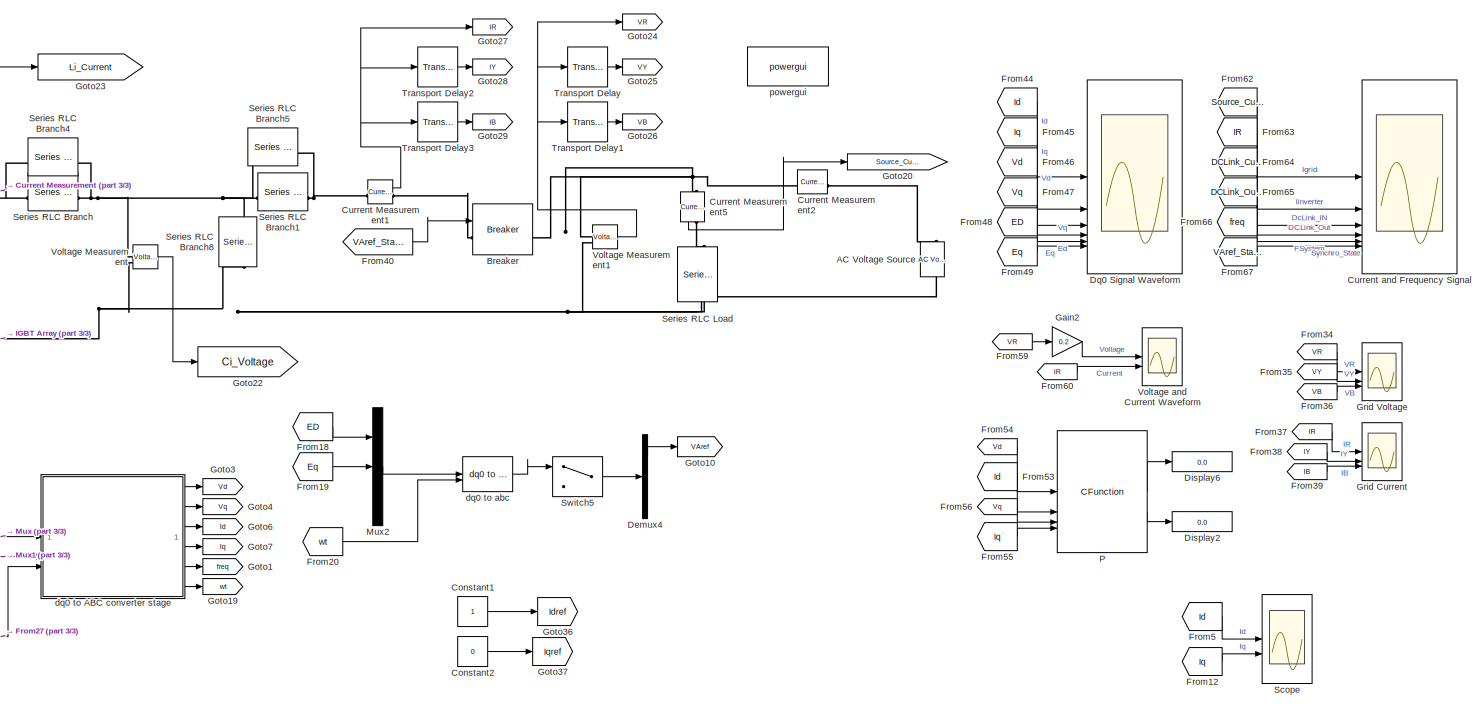
[diagram: root canvas - part 1/3, right side, full height]
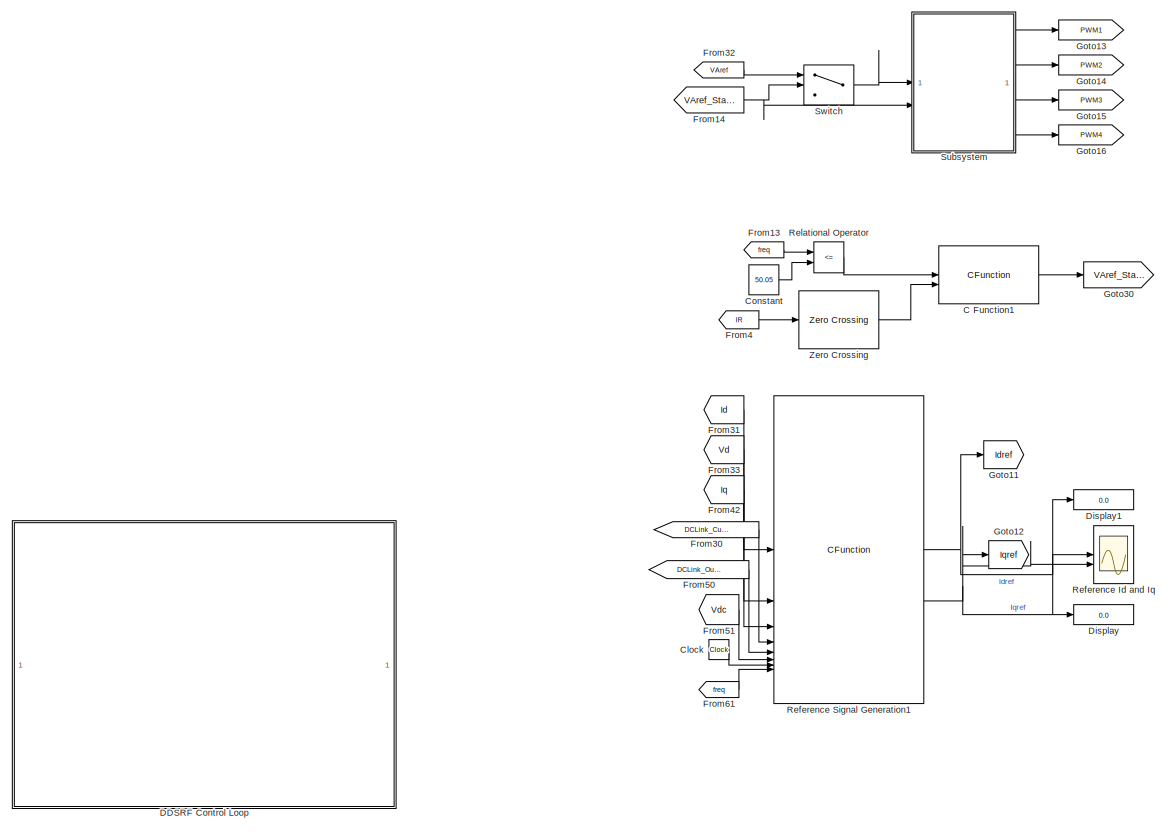
[diagram: root canvas - part 2/3, left side, full height]
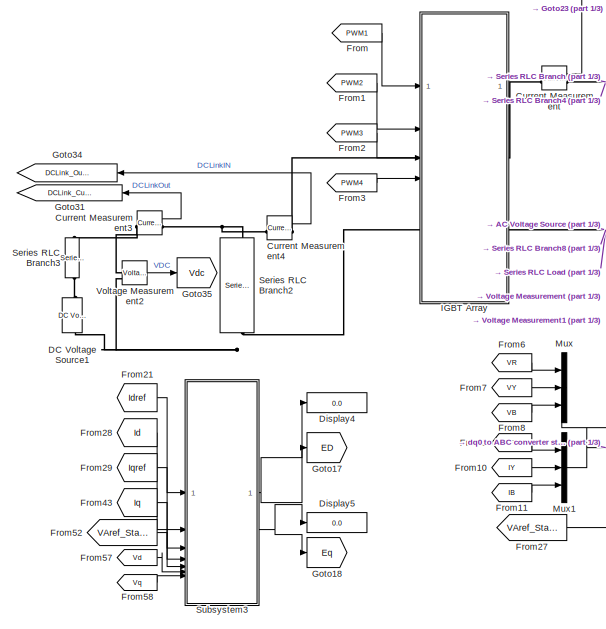
[diagram: root canvas - part 3/3, central region]
MODEL slx_5ee233726a26
KIND model
CONFIG AbsTol = auto
CONFIG EnableMultiTasking = off
CONFIG FixedStep = auto
CONFIG MaxStep = auto
CONFIG MinStep = auto
CONFIG RelTol = 1e-3
CONFIG SampleTimeConstraint = Unconstrained
CONFIG SolverName = VariableStepAuto
CONFIG StartTime = 0.0
CONFIG StopTime = 10
BLOCK [Reference] AC Voltage Source  REF=spsACVoltageSourceLib/AC Voltage Source
  LibrarySourceBlock = sps_lib/Sources/AC Voltage Source
  SourceBlock = spsACVoltageSourceLib/AC Voltage Source
  SourceType = AC Voltage Source
BLOCK [Reference] Breaker  REF=spsBreakerLib/Breaker
  LibrarySourceBlock = sps_lib/Power Grid Elements/Breaker
  SourceBlock = spsBreakerLib/Breaker
  SourceType = Breaker
BLOCK [CFunction] C Function1
  OutputCode = if(Frequency == true && ZeroCross == 1){\n    Output = 1;}\nelse if(Frequency == false){\n        Output = 0;}
  SampleTime = 1/50000
BLOCK [Clock] Clock
BLOCK [Constant] Constant
  SampleTime = 1/50000
  Value = 50.05
BLOCK [Constant] Constant1
  Commented = on
BLOCK [Constant] Constant2
  Commented = on
  Value = 0
BLOCK [Reference] Current Measurement  REF=spsCurrentMeasurementLib/Current Measurement
  LibrarySourceBlock = sps_lib/Sensors and Measurements/Current Measurement
  SourceBlock = spsCurrentMeasurementLib/Current Measurement
  SourceType = Current Measurement
  UserDataPersistent = on
BLOCK [Reference] Current Measurement1  REF=spsCurrentMeasurementLib/Current Measurement
  LibrarySourceBlock = sps_lib/Sensors and Measurements/Current Measurement
  SourceBlock = spsCurrentMeasurementLib/Current Measurement
  SourceType = Current Measurement
  UserDataPersistent = on
BLOCK [Reference] Current Measurement2  REF=spsCurrentMeasurementLib/Current Measurement
  LibrarySourceBlock = sps_lib/Sensors and Measurements/Current Measurement
  SourceBlock = spsCurrentMeasurementLib/Current Measurement
  SourceType = Current Measurement
  UserDataPersistent = on
BLOCK [Reference] Current Measurement3  REF=spsCurrentMeasurementLib/Current Measurement
  LibrarySourceBlock = sps_lib/Sensors and Measurements/Current Measurement
  SourceBlock = spsCurrentMeasurementLib/Current Measurement
  SourceType = Current Measurement
  UserDataPersistent = on
BLOCK [Reference] Current Measurement4  REF=spsCurrentMeasurementLib/Current Measurement
  LibrarySourceBlock = sps_lib/Sensors and Measurements/Current Measurement
  SourceBlock = spsCurrentMeasurementLib/Current Measurement
  SourceType = Current Measurement
  UserDataPersistent = on
BLOCK [Reference] Current Measurement5  REF=spsCurrentMeasurementLib/Current Measurement
  LibrarySourceBlock = sps_lib/Sensors and Measurements/Current Measurement
  NameLocation = right
  SourceBlock = spsCurrentMeasurementLib/Current Measurement
  SourceType = Current Measurement
  UserDataPersistent = on
BLOCK [Scope] Current and Frequency Signal
  Floating = off
  NumInputPorts = 6
  ScopeSpecificationString = Simulink.scopes.TimeScopeBlockCfg('CurrentConfiguration', extmgr.ConfigurationSet(extmgr.Configuration('Core','General UI',true),extmgr.Configuration('Core','Source UI',true),extmgr.Configuration('Sources','WiredSimulink',true,'DataLoggingVariableName','CurrentFrequencySignal','DataLogging',true,'DataLoggingSaveFormat','StructureWithTime'),extmgr.Configuration('Visuals','Time Domain',true,'Seriali...<+4930ch>
BLOCK [Reference] DC Voltage Source1  REF=spsDCVoltageSourceLib/DC Voltage Source
  SourceBlock = spsDCVoltageSourceLib/DC Voltage Source
  SourceType = DC Voltage Source
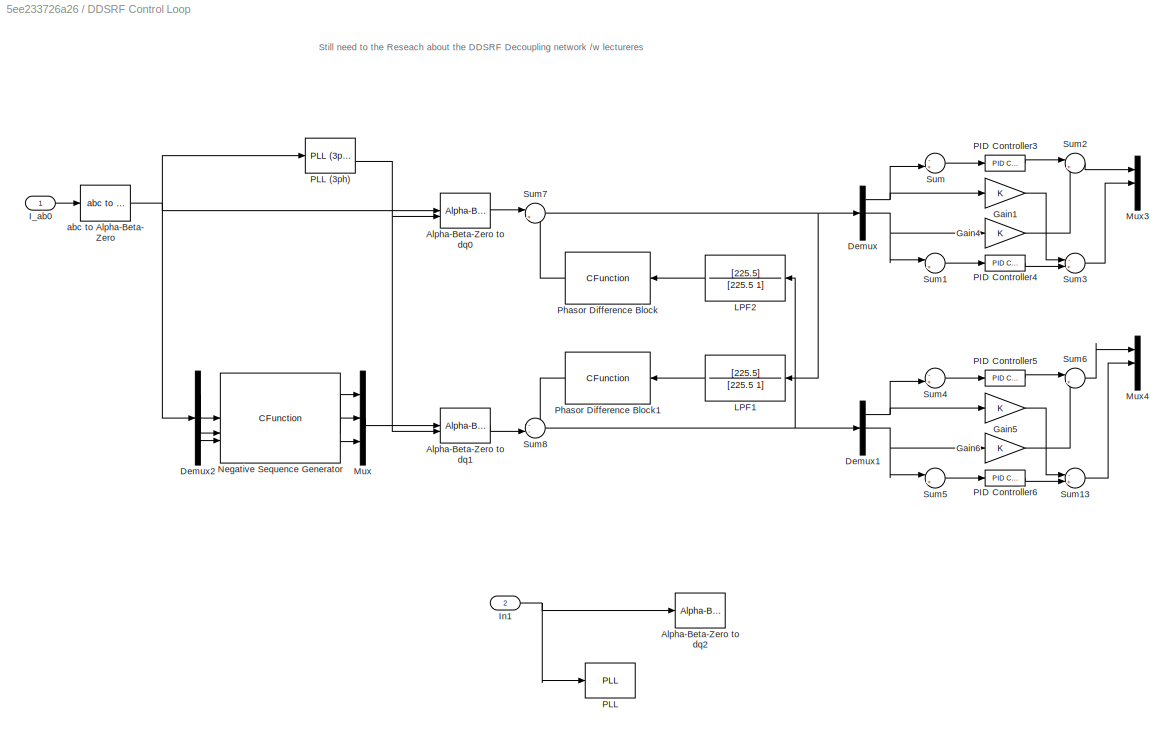
BLOCK [SubSystem] DDSRF Control Loop
  Commented = on
BLOCK [Reference] DDSRF Control Loop/Alpha-Beta-Zero to dq0  REF=spsAlphaBetaZerotodq0Lib/Alpha-Beta-Zero
to dq0
  LibrarySourceBlock = sps_lib/Control/Alpha-Beta-Zero\nto dq0
  SourceBlock = spsAlphaBetaZerotodq0Lib/Alpha-Beta-Zero\nto dq0
  SourceType = Alpha-Beta-Zero to dq0 Transformation
BLOCK [Reference] DDSRF Control Loop/Alpha-Beta-Zero to dq1  REF=spsAlphaBetaZerotodq0Lib/Alpha-Beta-Zero
to dq0
  LibrarySourceBlock = sps_lib/Control/Alpha-Beta-Zero\nto dq0
  SourceBlock = spsAlphaBetaZerotodq0Lib/Alpha-Beta-Zero\nto dq0
  SourceType = Alpha-Beta-Zero to dq0 Transformation
BLOCK [Reference] DDSRF Control Loop/Alpha-Beta-Zero to dq2  REF=spsAlphaBetaZerotodq0Lib/Alpha-Beta-Zero
to dq0
  LibrarySourceBlock = sps_lib/Control/Alpha-Beta-Zero\nto dq0
  SourceBlock = spsAlphaBetaZerotodq0Lib/Alpha-Beta-Zero\nto dq0
  SourceType = Alpha-Beta-Zero to dq0 Transformation
BLOCK [Demux] DDSRF Control Loop/Demux
  Outputs = 3
BLOCK [Demux] DDSRF Control Loop/Demux1
  Outputs = 3
BLOCK [Demux] DDSRF Control Loop/Demux2
  Outputs = 3
BLOCK [Gain] DDSRF Control Loop/Gain1
BLOCK [Gain] DDSRF Control Loop/Gain4
BLOCK [Gain] DDSRF Control Loop/Gain5
BLOCK [Gain] DDSRF Control Loop/Gain6
BLOCK [Inport] DDSRF Control Loop/I_ab0
BLOCK [Inport] DDSRF Control Loop/In1
  Port = 2
BLOCK [TransferFcn] DDSRF Control Loop/LPF1
  Denominator = [225.5 1]
  NameLocation = top
  Numerator = [225.5]
BLOCK [TransferFcn] DDSRF Control Loop/LPF2
  Denominator = [225.5 1]
  NameLocation = top
  Numerator = [225.5]
BLOCK [Mux] DDSRF Control Loop/Mux
  DisplayOption = bar
  Inputs = 3
BLOCK [Mux] DDSRF Control Loop/Mux3
  DisplayOption = bar
  Inputs = 3
BLOCK [Mux] DDSRF Control Loop/Mux4
  DisplayOption = bar
  Inputs = 3
BLOCK [CFunction] DDSRF Control Loop/Negative Sequence Generator
  OutputCode = VaNeg=*magnitude = cabs(NegativeSequenceVa(Va,Vb,Vc));
BLOCK [Reference] DDSRF Control Loop/PID Controller3  REF=slpidlib/PID Controller
  LibrarySourceBlock = simulink/Continuous/PID Controller
  SourceBlock = slpidlib/PID Controller
  SourceType = PID 1dof
BLOCK [Reference] DDSRF Control Loop/PID Controller4  REF=slpidlib/PID Controller
  LibrarySourceBlock = simulink/Continuous/PID Controller
  SourceBlock = slpidlib/PID Controller
  SourceType = PID 1dof
BLOCK [Reference] DDSRF Control Loop/PID Controller5  REF=slpidlib/PID Controller
  LibrarySourceBlock = simulink/Continuous/PID Controller
  SourceBlock = slpidlib/PID Controller
  SourceType = PID 1dof
BLOCK [Reference] DDSRF Control Loop/PID Controller6  REF=slpidlib/PID Controller
  LibrarySourceBlock = simulink/Continuous/PID Controller
  SourceBlock = slpidlib/PID Controller
  SourceType = PID 1dof
BLOCK [Reference] DDSRF Control Loop/PLL  REF=spsPLLLib/PLL
  LibrarySourceBlock = sps_lib/Control/PLL
  SourceBlock = spsPLLLib/PLL
  SourceType = PLL
BLOCK [Reference] DDSRF Control Loop/PLL (3ph)  REF=spsPLL3phLib/PLL
(3ph)
  LibrarySourceBlock = sps_lib/Control/PLL\n(3ph)
  SourceBlock = spsPLL3phLib/PLL\n(3ph)
  SourceType = PLL (3ph)
BLOCK [CFunction] DDSRF Control Loop/Phasor Difference Block
  NameLocation = top
BLOCK [CFunction] DDSRF Control Loop/Phasor Difference Block1
  NameLocation = top
BLOCK [Sum] DDSRF Control Loop/Sum
  Inputs = -+|
BLOCK [Sum] DDSRF Control Loop/Sum1
  Inputs = |+-
BLOCK [Sum] DDSRF Control Loop/Sum13
  Inputs = -+|
BLOCK [Sum] DDSRF Control Loop/Sum2
  Inputs = |++
BLOCK [Sum] DDSRF Control Loop/Sum3
  Inputs = -+|
BLOCK [Sum] DDSRF Control Loop/Sum4
  Inputs = -+|
BLOCK [Sum] DDSRF Control Loop/Sum5
  Inputs = |+-
BLOCK [Sum] DDSRF Control Loop/Sum6
  Inputs = |++
BLOCK [Sum] DDSRF Control Loop/Sum7
  Inputs = |++
BLOCK [Sum] DDSRF Control Loop/Sum8
  Inputs = --|
BLOCK [Reference] DDSRF Control Loop/abc to Alpha-Beta-Zero  REF=spsabctoAlphaBetaZeroLib/abc to
Alpha-Beta-Zero
  LibrarySourceBlock = sps_lib/Control/abc to\nAlpha-Beta-Zero
  SourceBlock = spsabctoAlphaBetaZeroLib/abc to\nAlpha-Beta-Zero
  SourceType = abc to Alpha-Beta-Zero Transformation
BLOCK [Demux] Demux4
  Outputs = 3
BLOCK [Display] Display
  Decimation = 1
BLOCK [Display] Display1
  Decimation = 1
BLOCK [Display] Display2
  Decimation = 1
BLOCK [Display] Display4
  Decimation = 1
BLOCK [Display] Display5
  Decimation = 1
BLOCK [Display] Display6
  Decimation = 1
BLOCK [Scope] Dq0 Signal Waveform
  Floating = off
  NumInputPorts = 6
  ScopeSpecificationString = Simulink.scopes.TimeScopeBlockCfg('CurrentConfiguration', extmgr.ConfigurationSet(extmgr.Configuration('Core','General UI',true),extmgr.Configuration('Core','Source UI',true),extmgr.Configuration('Sources','WiredSimulink',true,'DataLoggingVariableName','Dq0ignalWaveform','DataLogging',true,'DataLoggingSaveFormat','StructureWithTime'),extmgr.Configuration('Visuals','Time Domain',true,'SerializedDis...<+4909ch>
BLOCK [From] From
  GotoTag = PWM1
BLOCK [From] From1
  GotoTag = PWM2
BLOCK [From] From10
  GotoTag = IY
BLOCK [From] From11
  GotoTag = IB
BLOCK [From] From12
  GotoTag = Iq
BLOCK [From] From13
  GotoTag = freq
BLOCK [From] From14
  GotoTag = VAref_State
BLOCK [From] From18
  GotoTag = ED
BLOCK [From] From19
  GotoTag = Eq
BLOCK [From] From2
  GotoTag = PWM3
BLOCK [From] From20
  GotoTag = wt
BLOCK [From] From21
  GotoTag = Idref
BLOCK [From] From27
  GotoTag = VAref_State
BLOCK [From] From28
  GotoTag = Id
BLOCK [From] From29
  GotoTag = Iqref
BLOCK [From] From3
  GotoTag = PWM4
BLOCK [From] From30
  GotoTag = DCLink_Current
  NameLocation = top
BLOCK [From] From31
  GotoTag = Id
BLOCK [From] From32
  GotoTag = VAref
BLOCK [From] From33
  GotoTag = Vd
BLOCK [From] From34
  GotoTag = VR
BLOCK [From] From35
  GotoTag = VY
BLOCK [From] From36
  GotoTag = VB
BLOCK [From] From37
  GotoTag = IR
BLOCK [From] From38
  GotoTag = IY
BLOCK [From] From39
  GotoTag = IB
BLOCK [From] From4
  GotoTag = IR
BLOCK [From] From40
  GotoTag = VAref_State
BLOCK [From] From42
  GotoTag = Iq
BLOCK [From] From43
  GotoTag = Iq
BLOCK [From] From44
  GotoTag = Id
BLOCK [From] From45
  GotoTag = Iq
BLOCK [From] From46
  GotoTag = Vd
BLOCK [From] From47
  GotoTag = Vq
BLOCK [From] From48
  GotoTag = ED
BLOCK [From] From49
  GotoTag = Eq
BLOCK [From] From5
  GotoTag = Id
BLOCK [From] From50
  GotoTag = DCLink_OutCurrent
  NameLocation = top
BLOCK [From] From51
  GotoTag = Vdc
BLOCK [From] From52
  GotoTag = VAref_State
BLOCK [From] From53
  GotoTag = Id
BLOCK [From] From54
  GotoTag = Vd
BLOCK [From] From55
  GotoTag = Iq
BLOCK [From] From56
  GotoTag = Vq
BLOCK [From] From57
  GotoTag = Vd
BLOCK [From] From58
  GotoTag = Vq
BLOCK [From] From59
  GotoTag = VR
BLOCK [From] From6
  GotoTag = VR
BLOCK [From] From60
  GotoTag = IR
BLOCK [From] From61
  GotoTag = freq
BLOCK [From] From62
  GotoTag = Source_Current
BLOCK [From] From63
  GotoTag = IR
BLOCK [From] From64
  GotoTag = DCLink_Current
BLOCK [From] From65
  GotoTag = DCLink_OutCurrent
BLOCK [From] From66
  GotoTag = freq
BLOCK [From] From67
  GotoTag = VAref_State
BLOCK [From] From7
  GotoTag = VY
BLOCK [From] From8
  GotoTag = VB
BLOCK [From] From9
  GotoTag = IR
BLOCK [Gain] Gain2
  Gain = 0.2
BLOCK [Goto] Goto1
  GotoTag = freq
BLOCK [Goto] Goto10
  GotoTag = VAref
BLOCK [Goto] Goto11
  GotoTag = Idref
BLOCK [Goto] Goto12
  GotoTag = Iqref
BLOCK [Goto] Goto13
  GotoTag = PWM1
BLOCK [Goto] Goto14
  GotoTag = PWM2
BLOCK [Goto] Goto15
  GotoTag = PWM3
BLOCK [Goto] Goto16
  GotoTag = PWM4
BLOCK [Goto] Goto17
  GotoTag = ED
BLOCK [Goto] Goto18
  GotoTag = Eq
BLOCK [Goto] Goto19
  GotoTag = wt
BLOCK [Goto] Goto20
  GotoTag = Source_Current
BLOCK [Goto] Goto22
  GotoTag = Ci_Voltage
BLOCK [Goto] Goto23
  GotoTag = Li_Current
BLOCK [Goto] Goto24
  GotoTag = VR
BLOCK [Goto] Goto25
  GotoTag = VY
BLOCK [Goto] Goto26
  GotoTag = VB
BLOCK [Goto] Goto27
  GotoTag = IR
BLOCK [Goto] Goto28
  GotoTag = IY
BLOCK [Goto] Goto29
  GotoTag = IB
BLOCK [Goto] Goto3
  GotoTag = Vd
BLOCK [Goto] Goto30
  GotoTag = VAref_State
BLOCK [Goto] Goto31
  GotoTag = DCLink_Current
  NameLocation = top
BLOCK [Goto] Goto34
  GotoTag = DCLink_OutCurrent
  NameLocation = top
BLOCK [Goto] Goto35
  GotoTag = Vdc
BLOCK [Goto] Goto36
  Commented = on
  GotoTag = Idref
BLOCK [Goto] Goto37
  Commented = on
  GotoTag = Iqref
BLOCK [Goto] Goto4
  GotoTag = Vq
BLOCK [Goto] Goto6
  GotoTag = Id
  NameLocation = top
BLOCK [Goto] Goto7
  GotoTag = Iq
BLOCK [Scope] Grid Current
  Floating = off
  NumInputPorts = 3
  ScopeSpecificationString = Simulink.scopes.TimeScopeBlockCfg('CurrentConfiguration', extmgr.ConfigurationSet(extmgr.Configuration('Core','General UI',true),extmgr.Configuration('Core','Source UI',true),extmgr.Configuration('Sources','WiredSimulink',true,'DataLoggingVariableName','ScopeData2'),extmgr.Configuration('Visuals','Time Domain',true,'SerializedDisplays',{struct('MinYLimReal','-65.47958','MaxYLimReal','69.37692','YL...<+2740ch>
BLOCK [Scope] Grid Voltage
  Floating = off
  NumInputPorts = 3
  ScopeSpecificationString = Simulink.scopes.TimeScopeBlockCfg('CurrentConfiguration', extmgr.ConfigurationSet(extmgr.Configuration('Core','General UI',true),extmgr.Configuration('Core','Source UI',true),extmgr.Configuration('Sources','WiredSimulink',true,'DataLoggingVariableName','ScopeData1'),extmgr.Configuration('Visuals','Time Domain',true,'SerializedDisplays',{struct('MinYLimReal','-353.77358','MaxYLimReal','339.58338','...<+1481ch>
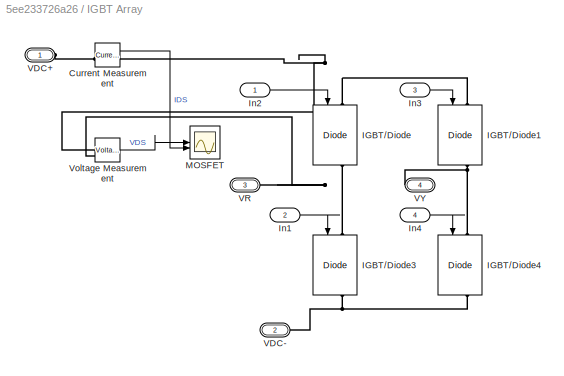
BLOCK [SubSystem] IGBT Array
BLOCK [Reference] IGBT Array/Current Measurement  REF=spsCurrentMeasurementLib/Current Measurement
  LibrarySourceBlock = sps_lib/Sensors and Measurements/Current Measurement
  SourceBlock = spsCurrentMeasurementLib/Current Measurement
  SourceType = Current Measurement
  UserDataPersistent = on
BLOCK [Reference] IGBT Array/IGBT//Diode  REF=spsIGBTDiodeLib/IGBT//Diode
  NameLocation = left
  SourceBlock = spsIGBTDiodeLib/IGBT//Diode
  SourceType = IGBT/Diode
BLOCK [Reference] IGBT Array/IGBT//Diode1  REF=spsIGBTDiodeLib/IGBT//Diode
  NameLocation = left
  SourceBlock = spsIGBTDiodeLib/IGBT//Diode
  SourceType = IGBT/Diode
BLOCK [Reference] IGBT Array/IGBT//Diode3  REF=spsIGBTDiodeLib/IGBT//Diode
  NameLocation = left
  SourceBlock = spsIGBTDiodeLib/IGBT//Diode
  SourceType = IGBT/Diode
BLOCK [Reference] IGBT Array/IGBT//Diode4  REF=spsIGBTDiodeLib/IGBT//Diode
  NameLocation = left
  SourceBlock = spsIGBTDiodeLib/IGBT//Diode
  SourceType = IGBT/Diode
BLOCK [Inport] IGBT Array/In1
  Port = 2
BLOCK [Inport] IGBT Array/In2
  IconDisplay = Signal name
BLOCK [Inport] IGBT Array/In3
  IconDisplay = Signal name
  Port = 3
BLOCK [Inport] IGBT Array/In4
  Port = 4
BLOCK [Scope] IGBT Array/MOSFET
  Floating = off
  NumInputPorts = 2
  ScopeSpecificationString = Simulink.scopes.TimeScopeBlockCfg('CurrentConfiguration', extmgr.ConfigurationSet(extmgr.Configuration('Core','General UI',true),extmgr.Configuration('Core','Source UI',true),extmgr.Configuration('Sources','WiredSimulink',true,'DataLoggingVariableName','MOSFET','DataLogging',true,'DataLoggingSaveFormat','StructureWithTime'),extmgr.Configuration('Visuals','Time Domain',true,'SerializedDisplays',{st...<+2082ch>
BLOCK [PMIOPort] IGBT Array/VDC+
  Side = Left
BLOCK [PMIOPort] IGBT Array/VDC-
  Port = 2
  Side = Left
BLOCK [PMIOPort] IGBT Array/VR
  Port = 3
  Side = Right
BLOCK [PMIOPort] IGBT Array/VY
  Port = 4
  Side = Right
BLOCK [Reference] IGBT Array/Voltage Measurement  REF=spsVoltageMeasurementLib/Voltage Measurement
  LibrarySourceBlock = sps_lib/Sensors and Measurements/Voltage Measurement
  SourceBlock = spsVoltageMeasurementLib/Voltage Measurement
  SourceType = Voltage Measurement
  UserDataPersistent = on
BLOCK [Mux] Mux
  DisplayOption = bar
  Inputs = 3
BLOCK [Mux] Mux1
  DisplayOption = bar
  Inputs = 3
BLOCK [Mux] Mux2
  DisplayOption = bar
  Inputs = 3
BLOCK [CFunction] P
  OutputCode = PTotal = Id*Vd;\nQTotal = Id*Vq-Vq*Id;
BLOCK [Scope] Reference Id and Iq
  Floating = off
  NumInputPorts = 2
  ScopeSpecificationString = Simulink.scopes.TimeScopeBlockCfg('CurrentConfiguration', extmgr.ConfigurationSet(extmgr.Configuration('Core','General UI',true),extmgr.Configuration('Core','Source UI',true),extmgr.Configuration('Sources','WiredSimulink',true,'DataLoggingVariableName','Referencegen','DataLogging',true,'DataLoggingSaveFormat','StructureWithTime'),extmgr.Configuration('Visuals','Time Domain',true,'SerializedDisplay...<+1543ch>
BLOCK [CFunction] Reference Signal Generation1
  OutputCode = if(Id!=PreviousId || Iq!=PreviousIq){\n    if(ReferenceGenTrigger(Freq_PLL)){\n        Idref=IdrefCalc(CLK,Vd,Iin,Iout, Vdc, Vdc);\n  //Idref =1;\n   Iqref=0;\n   PreviousId=Id;\n   PreviousIq=Iq;\n   }\n  \n} else { Idref = 0; Iqref = 0;}
  SampleTime = 1/50000
  StartCode = PreviousIq =0;\nPreviousId =0;
BLOCK [RelationalOperator] Relational Operator
  InputSameDT = off
  Operator = <=
  OutDataTypeStr = boolean
  RndMeth = Simplest
BLOCK [Scope] Scope
  Floating = off
  NumInputPorts = 2
  ScopeSpecificationString = Simulink.scopes.TimeScopeBlockCfg('CurrentConfiguration', extmgr.ConfigurationSet(extmgr.Configuration('Core','General UI',true),extmgr.Configuration('Core','Source UI',true),extmgr.Configuration('Sources','WiredSimulink',true,'DataLoggingVariableName','ScopeData1'),extmgr.Configuration('Visuals','Time Domain',true,'SerializedDisplays',{struct('MinYLimReal','7.39968','MaxYLimReal','50.80408','YLab...<+1441ch>
BLOCK [Reference] Series RLC Branch  REF=spsSeriesRLCBranchLib/Series RLC Branch
  SourceBlock = spsSeriesRLCBranchLib/Series RLC Branch
  SourceType = Series RLC Branch
BLOCK [Reference] Series RLC Branch1  REF=spsSeriesRLCBranchLib/Series RLC Branch
  SourceBlock = spsSeriesRLCBranchLib/Series RLC Branch
  SourceType = Series RLC Branch
BLOCK [Reference] Series RLC Branch2  REF=spsSeriesRLCBranchLib/Series RLC Branch
  LibrarySourceBlock = sps_lib/Passives/Series RLC Branch
  NameLocation = left
  SourceBlock = spsSeriesRLCBranchLib/Series RLC Branch
  SourceType = Series RLC Branch
BLOCK [Reference] Series RLC Branch3  REF=spsSeriesRLCBranchLib/Series RLC Branch
  LibrarySourceBlock = sps_lib/Passives/Series RLC Branch
  NameLocation = left
  SourceBlock = spsSeriesRLCBranchLib/Series RLC Branch
  SourceType = Series RLC Branch
BLOCK [Reference] Series RLC Branch4  REF=spsSeriesRLCBranchLib/Series RLC Branch
  Commented = on
  SourceBlock = spsSeriesRLCBranchLib/Series RLC Branch
  SourceType = Series RLC Branch
BLOCK [Reference] Series RLC Branch5  REF=spsSeriesRLCBranchLib/Series RLC Branch
  Commented = on
  SourceBlock = spsSeriesRLCBranchLib/Series RLC Branch
  SourceType = Series RLC Branch
BLOCK [Reference] Series RLC Branch8  REF=spsSeriesRLCBranchLib/Series RLC Branch
  SourceBlock = spsSeriesRLCBranchLib/Series RLC Branch
  SourceType = Series RLC Branch
BLOCK [Reference] Series RLC Load  REF=spsSeriesRLCLoadLib/Series RLC Load
  AttributesFormatString = \n
  LibrarySourceBlock = sps_lib/Passives/Series RLC Load
  NameLocation = left
  SourceBlock = spsSeriesRLCLoadLib/Series RLC Load
  SourceType = Series RLC Load
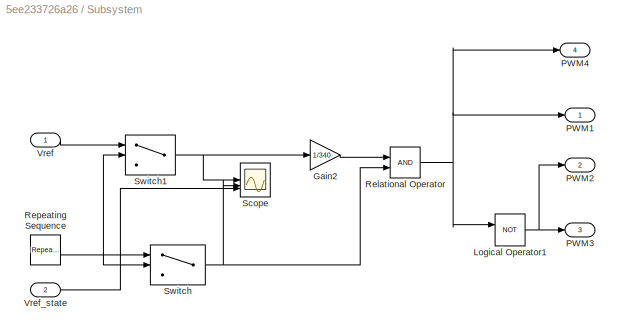
BLOCK [SubSystem] Subsystem
BLOCK [Gain] Subsystem/Gain2
  Gain = 1/340
BLOCK [Logic] Subsystem/Logical Operator1
  AllPortsSameDT = off
  Operator = NOT
  OutDataTypeStr = boolean
BLOCK [Outport] Subsystem/PWM1
BLOCK [Outport] Subsystem/PWM2
  Port = 2
BLOCK [Outport] Subsystem/PWM3
  Port = 3
BLOCK [Outport] Subsystem/PWM4
  Port = 4
BLOCK [RelationalOperator] Subsystem/Relational Operator
  InputSameDT = off
  OutDataTypeStr = boolean
  RndMeth = Simplest
BLOCK [Reference] Subsystem/Repeating Sequence  REF=simulink/Sources/Repeating
Sequence
  SourceBlock = simulink/Sources/Repeating\nSequence
  SourceType = Repeating table
BLOCK [Scope] Subsystem/Scope
  Floating = off
  NumInputPorts = 3
  ScopeSpecificationString = Simulink.scopes.TimeScopeBlockCfg('CurrentConfiguration', extmgr.ConfigurationSet(extmgr.Configuration('Core','General UI',true),extmgr.Configuration('Core','Source UI',true),extmgr.Configuration('Sources','WiredSimulink',true,'DataLoggingVariableName','ScopeData2'),extmgr.Configuration('Visuals','Time Domain',true,'SerializedDisplays',{struct('MinYLimReal','-1.00000','MaxYLimReal','1.00000','YLab...<+2700ch>
BLOCK [Switch] Subsystem/Switch
  InputSameDT = off
  SaturateOnIntegerOverflow = off
  Threshold = 1
BLOCK [Switch] Subsystem/Switch1
  InputSameDT = off
  SaturateOnIntegerOverflow = off
  Threshold = 1
BLOCK [Inport] Subsystem/Vref
BLOCK [Inport] Subsystem/Vref_state
  Port = 2
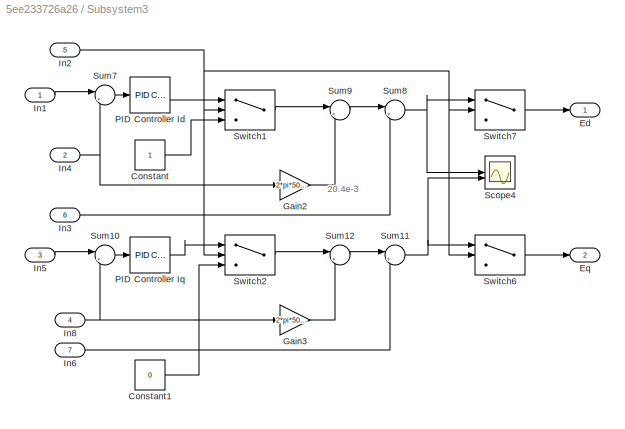
BLOCK [SubSystem] Subsystem3
BLOCK [Constant] Subsystem3/Constant
BLOCK [Constant] Subsystem3/Constant1
  Value = 0
BLOCK [Outport] Subsystem3/Ed
BLOCK [Outport] Subsystem3/Eq
  Port = 2
BLOCK [Gain] Subsystem3/Gain2
  Gain = 2*pi*50*20.4e-3
BLOCK [Gain] Subsystem3/Gain3
  Gain = 2*pi*50*20.4e-3
BLOCK [Inport] Subsystem3/In1
BLOCK [Inport] Subsystem3/In2
  Port = 5
BLOCK [Inport] Subsystem3/In3
  Port = 6
BLOCK [Inport] Subsystem3/In4
  Port = 2
BLOCK [Inport] Subsystem3/In5
  Port = 3
BLOCK [Inport] Subsystem3/In6
  Port = 7
BLOCK [Inport] Subsystem3/In8
  Port = 4
BLOCK [Reference] Subsystem3/PID Controller Id  REF=slpidlib/PID Controller
  LibrarySourceBlock = simulink/Continuous/PID Controller
  SourceBlock = slpidlib/PID Controller
  SourceType = PID 1dof
BLOCK [Reference] Subsystem3/PID Controller Iq  REF=slpidlib/PID Controller
  LibrarySourceBlock = simulink/Continuous/PID Controller
  SourceBlock = slpidlib/PID Controller
  SourceType = PID 1dof
BLOCK [Scope] Subsystem3/Scope4
  Floating = off
  NumInputPorts = 2
  ScopeSpecificationString = Simulink.scopes.TimeScopeBlockCfg('CurrentConfiguration', extmgr.ConfigurationSet(extmgr.Configuration('Core','General UI',true),extmgr.Configuration('Core','Source UI',true),extmgr.Configuration('Sources','WiredSimulink',true,'DataLoggingVariableName','ScopeData3'),extmgr.Configuration('Visuals','Time Domain',true,'SerializedDisplays',{struct('MinYLimReal','-76.40129','MaxYLimReal','697.61157','Y...<+2007ch>
BLOCK [Sum] Subsystem3/Sum10
  Inputs = |+-
BLOCK [Sum] Subsystem3/Sum11
  Inputs = |++
BLOCK [Sum] Subsystem3/Sum12
  Inputs = |+-
BLOCK [Sum] Subsystem3/Sum7
  Inputs = |+-
BLOCK [Sum] Subsystem3/Sum8
  Inputs = |++
BLOCK [Sum] Subsystem3/Sum9
  Inputs = |++
BLOCK [Switch] Subsystem3/Switch1
  InputSameDT = off
  SaturateOnIntegerOverflow = off
  Threshold = 1
BLOCK [Switch] Subsystem3/Switch2
  InputSameDT = off
  SaturateOnIntegerOverflow = off
  Threshold = 1
BLOCK [Switch] Subsystem3/Switch6
  InputSameDT = off
  SaturateOnIntegerOverflow = off
  Threshold = 1
BLOCK [Switch] Subsystem3/Switch7
  InputSameDT = off
  SaturateOnIntegerOverflow = off
  Threshold = 1
BLOCK [Switch] Switch
  InputSameDT = off
  SaturateOnIntegerOverflow = off
  Threshold = 1
BLOCK [Switch] Switch5
  InputSameDT = off
  SaturateOnIntegerOverflow = off
  Threshold = 1
BLOCK [TransportDelay] Transport Delay
  BufferSize = 4096
  DelayTime = 6.67e-3
BLOCK [TransportDelay] Transport Delay1
  BufferSize = 5120
  DelayTime = 13.34e-3
BLOCK [TransportDelay] Transport Delay2
  BufferSize = 4096
  DelayTime = 6.67e-3
BLOCK [TransportDelay] Transport Delay3
  BufferSize = 4096
  DelayTime = 13.34e-3
BLOCK [Reference] Voltage Measurement  REF=spsVoltageMeasurementLib/Voltage Measurement
  LibrarySourceBlock = sps_lib/Sensors and Measurements/Voltage Measurement
  SourceBlock = spsVoltageMeasurementLib/Voltage Measurement
  SourceType = Voltage Measurement
  UserDataPersistent = on
BLOCK [Reference] Voltage Measurement1  REF=spsVoltageMeasurementLib/Voltage Measurement
  LibrarySourceBlock = sps_lib/Sensors and Measurements/Voltage Measurement
  SourceBlock = spsVoltageMeasurementLib/Voltage Measurement
  SourceType = Voltage Measurement
  UserDataPersistent = on
BLOCK [Reference] Voltage Measurement2  REF=spsVoltageMeasurementLib/Voltage Measurement
  LibrarySourceBlock = sps_lib/Sensors and Measurements/Voltage Measurement
  SourceBlock = spsVoltageMeasurementLib/Voltage Measurement
  SourceType = Voltage Measurement
  UserDataPersistent = on
BLOCK [Scope] Voltage and Current Waveform
  Floating = off
  NumInputPorts = 2
  ScopeSpecificationString = Simulink.scopes.TimeScopeBlockCfg('CurrentConfiguration', extmgr.ConfigurationSet(extmgr.Configuration('Core','General UI',true),extmgr.Configuration('Core','Source UI',true),extmgr.Configuration('Sources','WiredSimulink',true,'DataLoggingVariableName','InverterVI','DataLogging',true,'DataLoggingSaveFormat','StructureWithTime'),extmgr.Configuration('Visuals','Time Domain',true,'SerializedDisplays'...<+1542ch>
BLOCK [Reference] Zero Crossing  REF=dspsigops/Zero Crossing
  SourceBlock = dspsigops/Zero Crossing
  SourceType = Zero Crossing
  UserDataPersistent = on
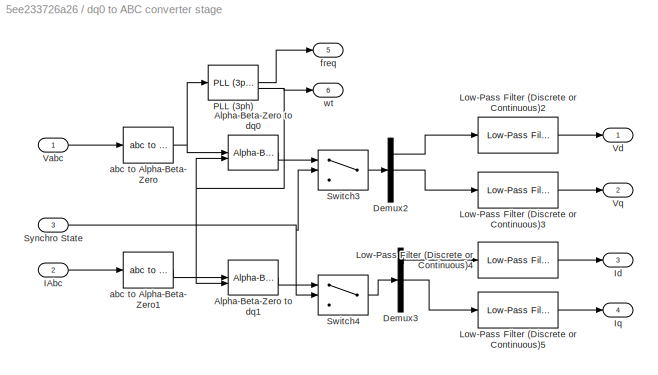
BLOCK [SubSystem] dq0 to ABC converter stage
BLOCK [Reference] dq0 to ABC converter stage/Alpha-Beta-Zero to dq0  REF=spsAlphaBetaZerotodq0Lib/Alpha-Beta-Zero
to dq0
  SourceBlock = spsAlphaBetaZerotodq0Lib/Alpha-Beta-Zero\nto dq0
  SourceType = Alpha-Beta-Zero to dq0 Transformation
BLOCK [Reference] dq0 to ABC converter stage/Alpha-Beta-Zero to dq1  REF=spsAlphaBetaZerotodq0Lib/Alpha-Beta-Zero
to dq0
  SourceBlock = spsAlphaBetaZerotodq0Lib/Alpha-Beta-Zero\nto dq0
  SourceType = Alpha-Beta-Zero to dq0 Transformation
BLOCK [Demux] dq0 to ABC converter stage/Demux2
  Outputs = 3
BLOCK [Demux] dq0 to ABC converter stage/Demux3
  Outputs = 3
BLOCK [Inport] dq0 to ABC converter stage/IAbc
  Port = 2
BLOCK [Outport] dq0 to ABC converter stage/Id
  Port = 3
BLOCK [Outport] dq0 to ABC converter stage/Iq
  Port = 4
BLOCK [Reference] dq0 to ABC converter stage/Low-Pass Filter (Discrete or Continuous)2  REF=eeGeneralControl/Low-Pass Filter
(Discrete or Continuous)
  Commented = through
  LibrarySourceBlock = ee_sl_lib/General Control/Low-Pass Filter\n(Discrete or Continuous)
  SourceBlock = eeGeneralControl/Low-Pass Filter\n(Discrete or Continuous)
  SourceType = Low-Pass Filter (Discrete or Continuous)
BLOCK [Reference] dq0 to ABC converter stage/Low-Pass Filter (Discrete or Continuous)3  REF=eeGeneralControl/Low-Pass Filter
(Discrete or Continuous)
  Commented = through
  LibrarySourceBlock = ee_sl_lib/General Control/Low-Pass Filter\n(Discrete or Continuous)
  SourceBlock = eeGeneralControl/Low-Pass Filter\n(Discrete or Continuous)
  SourceType = Low-Pass Filter (Discrete or Continuous)
BLOCK [Reference] dq0 to ABC converter stage/Low-Pass Filter (Discrete or Continuous)4  REF=eeGeneralControl/Low-Pass Filter
(Discrete or Continuous)
  Commented = through
  LibrarySourceBlock = ee_sl_lib/General Control/Low-Pass Filter\n(Discrete or Continuous)
  SourceBlock = eeGeneralControl/Low-Pass Filter\n(Discrete or Continuous)
  SourceType = Low-Pass Filter (Discrete or Continuous)
BLOCK [Reference] dq0 to ABC converter stage/Low-Pass Filter (Discrete or Continuous)5  REF=eeGeneralControl/Low-Pass Filter
(Discrete or Continuous)
  Commented = through
  LibrarySourceBlock = ee_sl_lib/General Control/Low-Pass Filter\n(Discrete or Continuous)
  SourceBlock = eeGeneralControl/Low-Pass Filter\n(Discrete or Continuous)
  SourceType = Low-Pass Filter (Discrete or Continuous)
BLOCK [Reference] dq0 to ABC converter stage/PLL (3ph)  REF=spsPLL3phLib/PLL
(3ph)
  LibrarySourceBlock = sps_lib/Control/PLL\n(3ph)
  SourceBlock = spsPLL3phLib/PLL\n(3ph)
  SourceType = PLL (3ph)
BLOCK [Switch] dq0 to ABC converter stage/Switch3
  InputSameDT = off
  SaturateOnIntegerOverflow = off
  Threshold = 1
BLOCK [Switch] dq0 to ABC converter stage/Switch4
  InputSameDT = off
  SaturateOnIntegerOverflow = off
  Threshold = 1
BLOCK [Inport] dq0 to ABC converter stage/Synchro State
  Port = 3
BLOCK [Inport] dq0 to ABC converter stage/Vabc
BLOCK [Outport] dq0 to ABC converter stage/Vd
BLOCK [Outport] dq0 to ABC converter stage/Vq
  Port = 2
BLOCK [Reference] dq0 to ABC converter stage/abc to Alpha-Beta-Zero  REF=spsabctoAlphaBetaZeroLib/abc to
Alpha-Beta-Zero
  SourceBlock = spsabctoAlphaBetaZeroLib/abc to\nAlpha-Beta-Zero
  SourceType = abc to Alpha-Beta-Zero Transformation
BLOCK [Reference] dq0 to ABC converter stage/abc to Alpha-Beta-Zero1  REF=spsabctoAlphaBetaZeroLib/abc to
Alpha-Beta-Zero
  SourceBlock = spsabctoAlphaBetaZeroLib/abc to\nAlpha-Beta-Zero
  SourceType = abc to Alpha-Beta-Zero Transformation
BLOCK [Outport] dq0 to ABC converter stage/freq
  Port = 5
BLOCK [Outport] dq0 to ABC converter stage/wt
  Port = 6
BLOCK [Reference] dq0 to abc  REF=spsdq0toabcLib/dq0 to abc
  SourceBlock = spsdq0toabcLib/dq0 to abc
  SourceType = dq0 to abc Transformation
BLOCK [Reference] powergui  REF=spspowerguiLib/powergui
  Priority = 1
  SourceBlock = spspowerguiLib/powergui
  SourceType = PSB option menu block
ANNOTATION DDSRF Control Loop: Still need to the Reseach about the DDSRF Decoupling network /w lectureres
ANNOTATION Subsystem3: 20.4e-3
LINE C Function1:1 -> Goto30:1
LINE Clock:1 -> Reference Signal Generation1:7
LINE Constant1:1 -> Goto36:1
LINE Constant2:1 -> Goto37:1
LINE Constant:1 -> Relational Operator:2
NET Current Measurement1:1 -> Goto27:1, Transport Delay2:1, Transport Delay3:1
LINE Current Measurement3:1 -> Goto31:1
LINE Current Measurement4:1 -> Goto34:1
LINE Current Measurement5:1 -> Goto20:1
LINE Current Measurement:1 -> Goto23:1
LINE DDSRF Control Loop/Alpha-Beta-Zero to dq0:1 -> DDSRF Control Loop/Sum7:1
LINE DDSRF Control Loop/Alpha-Beta-Zero to dq1:1 -> DDSRF Control Loop/Sum8:2
NET DDSRF Control Loop/Demux1:1 -> DDSRF Control Loop/Gain5:1, DDSRF Control Loop/Sum4:2
NET DDSRF Control Loop/Demux1:2 -> DDSRF Control Loop/Gain6:1, DDSRF Control Loop/Sum5:1
LINE DDSRF Control Loop/Demux2:1 -> DDSRF Control Loop/Negative Sequence Generator:1
LINE DDSRF Control Loop/Demux2:2 -> DDSRF Control Loop/Negative Sequence Generator:2
LINE DDSRF Control Loop/Demux2:3 -> DDSRF Control Loop/Negative Sequence Generator:3
NET DDSRF Control Loop/Demux:1 -> DDSRF Control Loop/Gain1:1, DDSRF Control Loop/Sum:2
NET DDSRF Control Loop/Demux:2 -> DDSRF Control Loop/Gain4:1, DDSRF Control Loop/Sum1:1
LINE DDSRF Control Loop/Gain1:1 -> DDSRF Control Loop/Sum3:1
LINE DDSRF Control Loop/Gain4:1 -> DDSRF Control Loop/Sum2:2
LINE DDSRF Control Loop/Gain5:1 -> DDSRF Control Loop/Sum13:1
LINE DDSRF Control Loop/Gain6:1 -> DDSRF Control Loop/Sum6:2
LINE DDSRF Control Loop/I_ab0:1 -> DDSRF Control Loop/abc to Alpha-Beta-Zero:1
NET DDSRF Control Loop/In1:1 -> DDSRF Control Loop/Alpha-Beta-Zero to dq2:1, DDSRF Control Loop/PLL:1
LINE DDSRF Control Loop/LPF1:1 -> DDSRF Control Loop/Phasor Difference Block1:1
LINE DDSRF Control Loop/LPF2:1 -> DDSRF Control Loop/Phasor Difference Block:1
LINE DDSRF Control Loop/Mux:1 -> DDSRF Control Loop/Alpha-Beta-Zero to dq1:1
LINE DDSRF Control Loop/Negative Sequence Generator:1 -> DDSRF Control Loop/Mux:1
LINE DDSRF Control Loop/Negative Sequence Generator:2 -> DDSRF Control Loop/Mux:2
LINE DDSRF Control Loop/Negative Sequence Generator:3 -> DDSRF Control Loop/Mux:3
LINE DDSRF Control Loop/PID Controller3:1 -> DDSRF Control Loop/Sum2:1
LINE DDSRF Control Loop/PID Controller4:1 -> DDSRF Control Loop/Sum3:2
LINE DDSRF Control Loop/PID Controller5:1 -> DDSRF Control Loop/Sum6:1
LINE DDSRF Control Loop/PID Controller6:1 -> DDSRF Control Loop/Sum13:2
NET DDSRF Control Loop/PLL (3ph):2 -> DDSRF Control Loop/Alpha-Beta-Zero to dq0:2, DDSRF Control Loop/Alpha-Beta-Zero to dq1:2
LINE DDSRF Control Loop/Phasor Difference Block1:1 -> DDSRF Control Loop/Sum8:1
LINE DDSRF Control Loop/Phasor Difference Block:1 -> DDSRF Control Loop/Sum7:2
LINE DDSRF Control Loop/Sum13:1 -> DDSRF Control Loop/Mux4:2
LINE DDSRF Control Loop/Sum1:1 -> DDSRF Control Loop/PID Controller4:1
LINE DDSRF Control Loop/Sum2:1 -> DDSRF Control Loop/Mux3:1
LINE DDSRF Control Loop/Sum3:1 -> DDSRF Control Loop/Mux3:2
LINE DDSRF Control Loop/Sum4:1 -> DDSRF Control Loop/PID Controller5:1
LINE DDSRF Control Loop/Sum5:1 -> DDSRF Control Loop/PID Controller6:1
LINE DDSRF Control Loop/Sum6:1 -> DDSRF Control Loop/Mux4:1
NET DDSRF Control Loop/Sum7:1 -> DDSRF Control Loop/Demux:1, DDSRF Control Loop/LPF1:1
NET DDSRF Control Loop/Sum8:1 -> DDSRF Control Loop/Demux1:1, DDSRF Control Loop/LPF2:1
LINE DDSRF Control Loop/Sum:1 -> DDSRF Control Loop/PID Controller3:1
NET DDSRF Control Loop/abc to Alpha-Beta-Zero:1 -> DDSRF Control Loop/Alpha-Beta-Zero to dq0:1, DDSRF Control Loop/Demux2:1, DDSRF Control Loop/PLL (3ph):1
LINE Demux4:1 -> Goto10:1
LINE From10:1 -> Mux1:2
LINE From11:1 -> Mux1:3
LINE From12:1 -> Scope:2
LINE From13:1 -> Relational Operator:1
NET From14:1 -> Subsystem:2, Switch:2
LINE From18:1 -> Mux2:1
LINE From19:1 -> Mux2:2
LINE From1:1 -> IGBT Array:2
LINE From20:1 -> dq0 to abc:2
LINE From21:1 -> Subsystem3:1
LINE From27:1 -> dq0 to ABC converter stage:3
LINE From28:1 -> Subsystem3:2
LINE From29:1 -> Subsystem3:3
LINE From2:1 -> IGBT Array:3
LINE From30:1 -> Reference Signal Generation1:4
LINE From31:1 -> Reference Signal Generation1:1
LINE From32:1 -> Switch:1
LINE From33:1 -> Reference Signal Generation1:2
LINE From34:1 -> Grid Voltage:1
LINE From35:1 -> Grid Voltage:2
LINE From36:1 -> Grid Voltage:3
LINE From37:1 -> Grid Current:1
LINE From38:1 -> Grid Current:2
LINE From39:1 -> Grid Current:3
LINE From3:1 -> IGBT Array:4
LINE From40:1 -> Breaker:1
LINE From42:1 -> Reference Signal Generation1:3
LINE From43:1 -> Subsystem3:4
LINE From44:1 -> Dq0 Signal Waveform:1
LINE From45:1 -> Dq0 Signal Waveform:2
LINE From46:1 -> Dq0 Signal Waveform:3
LINE From47:1 -> Dq0 Signal Waveform:4
LINE From48:1 -> Dq0 Signal Waveform:5
LINE From49:1 -> Dq0 Signal Waveform:6
LINE From4:1 -> Zero Crossing:1
LINE From50:1 -> Reference Signal Generation1:5
LINE From51:1 -> Reference Signal Generation1:6
LINE From52:1 -> Subsystem3:5
LINE From53:1 -> P:2
LINE From54:1 -> P:1
LINE From55:1 -> P:4
LINE From56:1 -> P:3
LINE From57:1 -> Subsystem3:6
LINE From58:1 -> Subsystem3:7
LINE From59:1 -> Gain2:1
LINE From5:1 -> Scope:1
LINE From60:1 -> Voltage and Current Waveform:2
LINE From61:1 -> Reference Signal Generation1:8
LINE From62:1 -> Current and Frequency Signal:1
LINE From63:1 -> Current and Frequency Signal:2
LINE From64:1 -> Current and Frequency Signal:3
LINE From65:1 -> Current and Frequency Signal:4
LINE From66:1 -> Current and Frequency Signal:5
LINE From67:1 -> Current and Frequency Signal:6
LINE From6:1 -> Mux:1
LINE From7:1 -> Mux:2
LINE From8:1 -> Mux:3
LINE From9:1 -> Mux1:1
LINE From:1 -> IGBT Array:1
LINE Gain2:1 -> Voltage and Current Waveform:1
LINE IGBT Array/Current Measurement:1 -> IGBT Array/MOSFET:2
LINE IGBT Array/In1:1 -> IGBT Array/IGBT//Diode3:1
LINE IGBT Array/In2:1 -> IGBT Array/IGBT//Diode:1
LINE IGBT Array/In3:1 -> IGBT Array/IGBT//Diode1:1
LINE IGBT Array/In4:1 -> IGBT Array/IGBT//Diode4:1
LINE IGBT Array/Voltage Measurement:1 -> IGBT Array/MOSFET:1
LINE Mux1:1 -> dq0 to ABC converter stage:2
LINE Mux2:1 -> dq0 to abc:1
LINE Mux:1 -> dq0 to ABC converter stage:1
LINE P:1 -> Display6:1
LINE P:2 -> Display2:1
NET Reference Signal Generation1:1 -> Display1:1, Goto11:1, Reference Id and Iq:1
NET Reference Signal Generation1:2 -> Display:1, Goto12:1, Reference Id and Iq:2
LINE Relational Operator:1 -> C Function1:1
LINE Subsystem/Gain2:1 -> Subsystem/Relational Operator:1
NET Subsystem/Logical Operator1:1 -> Subsystem/PWM2:1, Subsystem/PWM3:1
NET Subsystem/Relational Operator:1 -> Subsystem/Logical Operator1:1, Subsystem/PWM1:1, Subsystem/PWM4:1
LINE Subsystem/Repeating Sequence:1 -> Subsystem/Switch:1
NET Subsystem/Switch1:1 -> Subsystem/Gain2:1, Subsystem/Scope:1
NET Subsystem/Switch:1 -> Subsystem/Relational Operator:2, Subsystem/Scope:2
LINE Subsystem/Vref:1 -> Subsystem/Switch1:1
NET Subsystem/Vref_state:1 -> Subsystem/Scope:3, Subsystem/Switch1:2, Subsystem/Switch:2
LINE Subsystem3/Constant1:1 -> Subsystem3/Switch2:3
LINE Subsystem3/Constant:1 -> Subsystem3/Switch1:3
LINE Subsystem3/Gain2:1 -> Subsystem3/Sum9:2
LINE Subsystem3/Gain3:1 -> Subsystem3/Sum12:2
LINE Subsystem3/In1:1 -> Subsystem3/Sum7:1
NET Subsystem3/In2:1 -> Subsystem3/Switch1:2, Subsystem3/Switch2:2, Subsystem3/Switch6:2, Subsystem3/Switch7:2
LINE Subsystem3/In3:1 -> Subsystem3/Sum8:2
NET Subsystem3/In4:1 -> Subsystem3/Gain2:1, Subsystem3/Sum7:2
LINE Subsystem3/In5:1 -> Subsystem3/Sum10:1
LINE Subsystem3/In6:1 -> Subsystem3/Sum11:2
NET Subsystem3/In8:1 -> Subsystem3/Gain3:1, Subsystem3/Sum10:2
LINE Subsystem3/PID Controller Id:1 -> Subsystem3/Switch1:1
LINE Subsystem3/PID Controller Iq:1 -> Subsystem3/Switch2:1
LINE Subsystem3/Sum10:1 -> Subsystem3/PID Controller Iq:1
NET Subsystem3/Sum11:1 -> Subsystem3/Scope4:2, Subsystem3/Switch6:1
LINE Subsystem3/Sum12:1 -> Subsystem3/Sum11:1
LINE Subsystem3/Sum7:1 -> Subsystem3/PID Controller Id:1
NET Subsystem3/Sum8:1 -> Subsystem3/Scope4:1, Subsystem3/Switch7:1
LINE Subsystem3/Sum9:1 -> Subsystem3/Sum8:1
LINE Subsystem3/Switch1:1 -> Subsystem3/Sum9:1
LINE Subsystem3/Switch2:1 -> Subsystem3/Sum12:1
LINE Subsystem3/Switch6:1 -> Subsystem3/Eq:1
LINE Subsystem3/Switch7:1 -> Subsystem3/Ed:1
NET Subsystem3:1 -> Display4:1, Goto17:1
NET Subsystem3:2 -> Display5:1, Goto18:1
LINE Subsystem:1 -> Goto13:1
LINE Subsystem:2 -> Goto14:1
LINE Subsystem:3 -> Goto15:1
LINE Subsystem:4 -> Goto16:1
LINE Switch5:1 -> Demux4:1
LINE Switch:1 -> Subsystem:1
LINE Transport Delay1:1 -> Goto26:1
LINE Transport Delay2:1 -> Goto28:1
LINE Transport Delay3:1 -> Goto29:1
LINE Transport Delay:1 -> Goto25:1
NET Voltage Measurement1:1 -> Goto24:1, Transport Delay1:1, Transport Delay:1
LINE Voltage Measurement2:1 -> Goto35:1
LINE Voltage Measurement:1 -> Goto22:1
LINE Zero Crossing:1 -> C Function1:2
LINE dq0 to ABC converter stage/Alpha-Beta-Zero to dq0:1 -> dq0 to ABC converter stage/Switch3:1
LINE dq0 to ABC converter stage/Alpha-Beta-Zero to dq1:1 -> dq0 to ABC converter stage/Switch4:1
LINE dq0 to ABC converter stage/Demux2:1 -> dq0 to ABC converter stage/Low-Pass Filter (Discrete or Continuous)2:1
LINE dq0 to ABC converter stage/Demux2:2 -> dq0 to ABC converter stage/Low-Pass Filter (Discrete or Continuous)3:1
LINE dq0 to ABC converter stage/Demux3:1 -> dq0 to ABC converter stage/Low-Pass Filter (Discrete or Continuous)4:1
LINE dq0 to ABC converter stage/Demux3:2 -> dq0 to ABC converter stage/Low-Pass Filter (Discrete or Continuous)5:1
LINE dq0 to ABC converter stage/IAbc:1 -> dq0 to ABC converter stage/abc to Alpha-Beta-Zero1:1
LINE dq0 to ABC converter stage/Low-Pass Filter (Discrete or Continuous)2:1 -> dq0 to ABC converter stage/Vd:1
LINE dq0 to ABC converter stage/Low-Pass Filter (Discrete or Continuous)3:1 -> dq0 to ABC converter stage/Vq:1
LINE dq0 to ABC converter stage/Low-Pass Filter (Discrete or Continuous)4:1 -> dq0 to ABC converter stage/Id:1
LINE dq0 to ABC converter stage/Low-Pass Filter (Discrete or Continuous)5:1 -> dq0 to ABC converter stage/Iq:1
LINE dq0 to ABC converter stage/PLL (3ph):1 -> dq0 to ABC converter stage/freq:1
NET dq0 to ABC converter stage/PLL (3ph):2 -> dq0 to ABC converter stage/Alpha-Beta-Zero to dq0:2, dq0 to ABC converter stage/Alpha-Beta-Zero to dq1:2, dq0 to ABC converter stage/wt:1
LINE dq0 to ABC converter stage/Switch3:1 -> dq0 to ABC converter stage/Demux2:1
LINE dq0 to ABC converter stage/Switch4:1 -> dq0 to ABC converter stage/Demux3:1
NET dq0 to ABC converter stage/Synchro State:1 -> dq0 to ABC converter stage/Switch3:2, dq0 to ABC converter stage/Switch4:2
LINE dq0 to ABC converter stage/Vabc:1 -> dq0 to ABC converter stage/abc to Alpha-Beta-Zero:1
LINE dq0 to ABC converter stage/abc to Alpha-Beta-Zero1:1 -> dq0 to ABC converter stage/Alpha-Beta-Zero to dq1:1
NET dq0 to ABC converter stage/abc to Alpha-Beta-Zero:1 -> dq0 to ABC converter stage/Alpha-Beta-Zero to dq0:1, dq0 to ABC converter stage/PLL (3ph):1
LINE dq0 to ABC converter stage:1 -> Goto3:1
LINE dq0 to ABC converter stage:2 -> Goto4:1
LINE dq0 to ABC converter stage:3 -> Goto6:1
LINE dq0 to ABC converter stage:4 -> Goto7:1
LINE dq0 to ABC converter stage:5 -> Goto1:1
LINE dq0 to ABC converter stage:6 -> Goto19:1
LINE dq0 to abc:1 -> Switch5:1
PNET net1: AC Voltage Source:LConn1 -- IGBT Array:RConn2 -- Series RLC Branch8:RConn1 -- Series RLC Load:RConn1 -- Voltage Measurement1:LConn2 -- Voltage Measurement:LConn2
PLINE AC Voltage Source:RConn1 -- Current Measurement2:LConn1
PLINE Breaker:LConn1 -- Current Measurement1:RConn1
PNET net2: Breaker:RConn1 -- Current Measurement2:RConn1 -- Current Measurement5:LConn1 -- Voltage Measurement1:LConn1
PNET net3: Current Measurement1:LConn1 -- Series RLC Branch1:RConn1 -- Series RLC Branch5:RConn1
PNET net4: Current Measurement3:LConn1 -- Series RLC Branch3:LConn1 -- Voltage Measurement2:LConn1
PNET net5: Current Measurement3:RConn1 -- Current Measurement4:LConn1 -- Series RLC Branch2:LConn1
PLINE Current Measurement4:RConn1 -- IGBT Array:LConn1
PLINE Current Measurement5:RConn1 -- Series RLC Load:LConn1
PLINE Current Measurement:LConn1 -- IGBT Array:RConn1
PNET net6: Current Measurement:RConn1 -- Series RLC Branch4:LConn1 -- Series RLC Branch:LConn1
PNET net7: DC Voltage Source1:LConn1 -- IGBT Array:LConn2 -- Series RLC Branch2:RConn1 -- Voltage Measurement2:LConn2
PLINE DC Voltage Source1:RConn1 -- Series RLC Branch3:RConn1
PLINE IGBT Array/Current Measurement:LConn1 -- IGBT Array/VDC+:RConn1
PNET net8: IGBT Array/Current Measurement:RConn1 -- IGBT Array/IGBT//Diode1:LConn1 -- IGBT Array/IGBT//Diode:LConn1 -- IGBT Array/Voltage Measurement:LConn1
PNET net9: IGBT Array/IGBT//Diode1:RConn1 -- IGBT Array/IGBT//Diode4:LConn1 -- IGBT Array/VY:RConn1
PNET net10: IGBT Array/IGBT//Diode3:LConn1 -- IGBT Array/IGBT//Diode:RConn1 -- IGBT Array/VR:RConn1 -- IGBT Array/Voltage Measurement:LConn2
PNET net11: IGBT Array/IGBT//Diode3:RConn1 -- IGBT Array/IGBT//Diode4:RConn1 -- IGBT Array/VDC-:RConn1
PNET net12: Series RLC Branch1:LConn1 -- Series RLC Branch4:RConn1 -- Series RLC Branch5:LConn1 -- Series RLC Branch8:LConn1 -- Series RLC Branch:RConn1 -- Voltage Measurement:LConn1
note: NET lines group one-source signal fan-out (src -> all destinations, sorted); 1:1 wires keep LINE; PNET lines group multi-terminal physical nets as a canonical sorted terminal list (undirected conserving connections); 2-terminal nets keep the pairwise PLINE form
